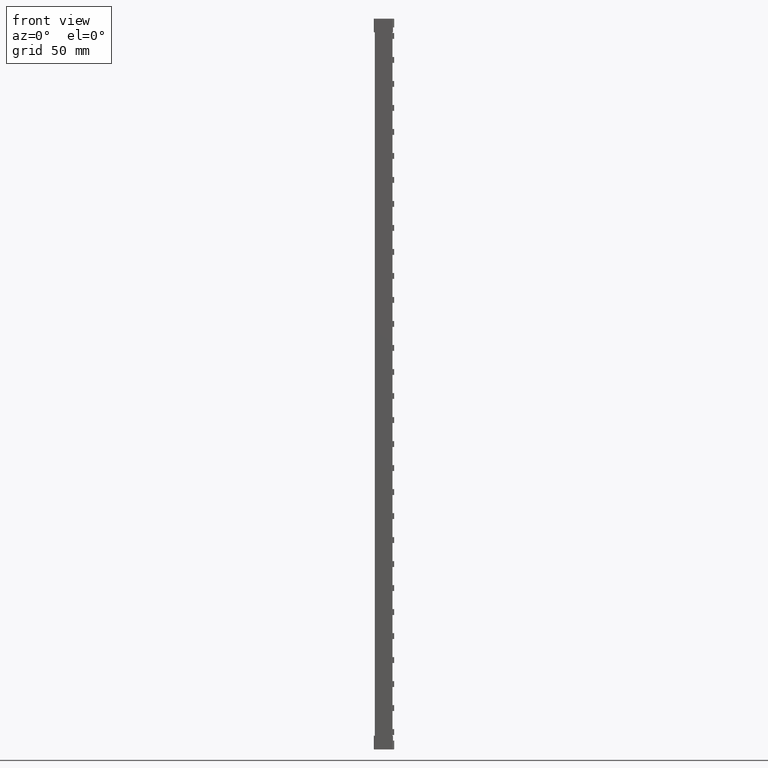
[diagram: clean part render]
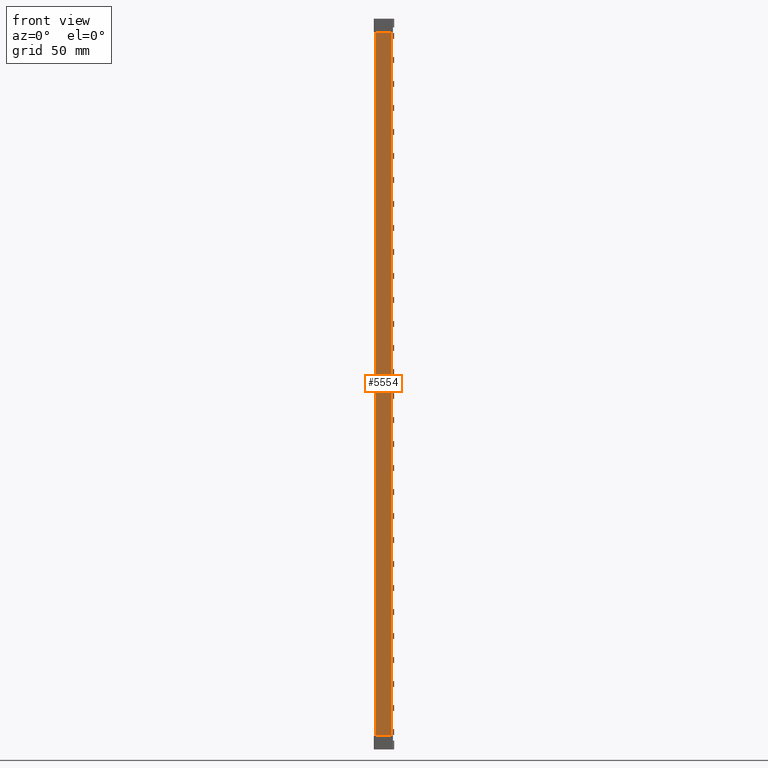
[diagram: same view with one face highlighted and labeled with its STEP entity id]
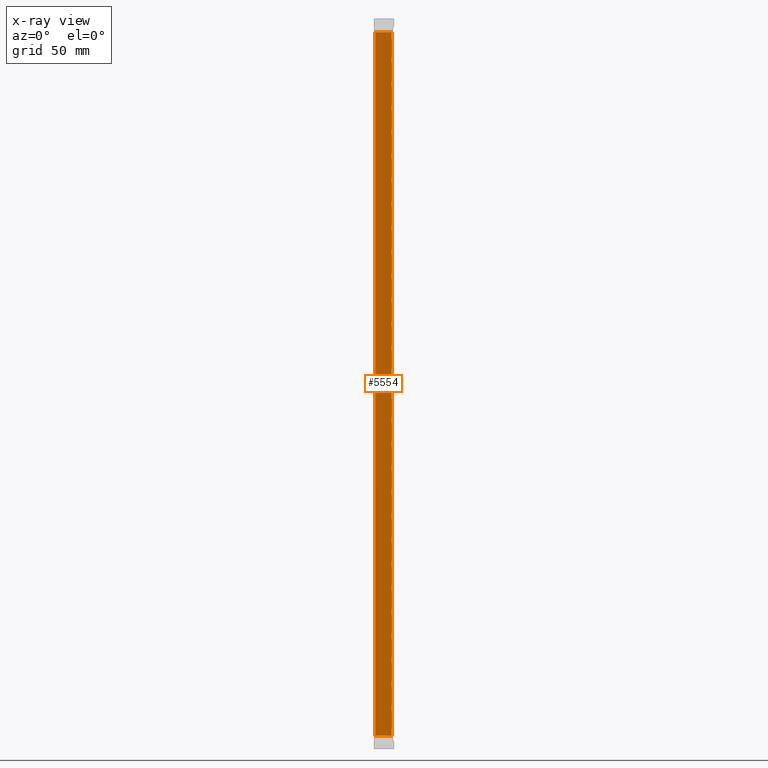
[diagram: x-ray of the same camera — body ghosted, the highlighted face saturated]
A machine part, front view. The second image highlights one B-rep face of the part: STEP entity #5554.
The next image is the same camera in x-ray: the body ghosted, the highlighted face saturated — about 0% of this face is hidden behind the body in this view.
In plain terms, the highlighted planar face has unit normal (-0, 1, 0).
Its self-contained STEP definition (entity closure, byte-faithful):
#605 = ORIENTED_EDGE ( 'NONE', *, *, #16977, .T. ) ;
#612 = ORIENTED_EDGE ( 'NONE', *, *, #22500, .F. ) ;
#639 = ORIENTED_EDGE ( 'NONE', *, *, #16926, .F. ) ;
#697 = ORIENTED_EDGE ( 'NONE', *, *, #16941, .T. ) ;
#1421 = VECTOR ( 'NONE', #19249, 1000.000000000000000 ) ;
#1452 = VECTOR ( 'NONE', #19268, 1000.000000000000100 ) ;
#1468 = VECTOR ( 'NONE', #19393, 1000.000000000000000 ) ;
#4062 = EDGE_LOOP ( 'NONE', ( #612, #605, #697, #639 ) ) ;
#5554 = ADVANCED_FACE ( 'NONE', ( #40787 ), #40804, .F. ) ;
#16926 = EDGE_CURVE ( 'NONE', #34152, #23257, #19223, .T. ) ;
#16941 = EDGE_CURVE ( 'NONE', #23083, #23257, #19299, .T. ) ;
#16977 = EDGE_CURVE ( 'NONE', #28327, #23083, #19386, .T. ) ;
#19223 = LINE ( 'NONE', #19227, #1421 ) ;
#19227 = CARTESIAN_POINT ( 'NONE',  ( 11.80192812978781800, 1.341396419667680700E-007, 219.0000000000000000 ) ) ;
#19249 = DIRECTION ( 'NONE',  ( -0.0000000000000000000, -0.0000000000000000000, -1.000000000000000000 ) ) ;
#19268 = DIRECTION ( 'NONE',  ( 0.9999999999999998900, 1.136590449795155200E-008, 3.864550688587075800E-026 ) ) ;
#19292 = CARTESIAN_POINT ( 'NONE',  ( -0.4999997060800690000, -5.682891657254884900E-009, -305.9000000000000300 ) ) ;
#19299 = LINE ( 'NONE', #19292, #1452 ) ;
#19386 = LINE ( 'NONE', #19392, #1468 ) ;
#19392 = CARTESIAN_POINT ( 'NONE',  ( -9.184850993604136500E-017, 5.551115123125782700E-014, 219.0000000000000000 ) ) ;
#19393 = DIRECTION ( 'NONE',  ( -0.0000000000000000000, -0.0000000000000000000, -1.000000000000000000 ) ) ;
#22500 = EDGE_CURVE ( 'NONE', #28327, #34152, #40713, .T. ) ;
#23083 = VERTEX_POINT ( 'NONE', #44083 ) ;
#23257 = VERTEX_POINT ( 'NONE', #42866 ) ;
#28327 = VERTEX_POINT ( 'NONE', #43292 ) ;
#31701 = AXIS2_PLACEMENT_3D ( 'NONE', #40783, #40782, #40839 ) ;
#34152 = VERTEX_POINT ( 'NONE', #43460 ) ;
#38941 = VECTOR ( 'NONE', #40715, 1000.000000000000100 ) ;
#40713 = LINE ( 'NONE', #40718, #38941 ) ;
#40715 = DIRECTION ( 'NONE',  ( 0.9999999999999998900, 1.136590436583420100E-008, -3.864550688586627000E-026 ) ) ;
#40718 = CARTESIAN_POINT ( 'NONE',  ( -0.4999997060800690000, -5.682893331100043300E-009, 209.9000000000000100 ) ) ;
#40782 = DIRECTION ( 'NONE',  ( -1.136590436583420300E-008, 1.000000000000000000, 0.0000000000000000000 ) ) ;
#40783 = CARTESIAN_POINT ( 'NONE',  ( 0.0000000000000000000, 5.551115123125782700E-014, 219.0000000000000000 ) ) ;
#40787 = FACE_OUTER_BOUND ( 'NONE', #4062, .T. ) ;
#40804 = PLANE ( 'NONE',  #31701 ) ;
#40839 = DIRECTION ( 'NONE',  ( -0.9999999999999998900, -1.136590436583420100E-008, 0.0000000000000000000 ) ) ;
#42866 = CARTESIAN_POINT ( 'NONE',  ( 11.80192812978781800, 1.341396452464796400E-007, -305.9000000000000300 ) ) ;
#43292 = CARTESIAN_POINT ( 'NONE',  ( 0.0000000000000000000, 5.725105502598715000E-014, 209.9000000000000100 ) ) ;
#43460 = CARTESIAN_POINT ( 'NONE',  ( 11.80192812978781800, 1.341396452464796400E-007, 209.9000000000000100 ) ) ;
#44083 = CARTESIAN_POINT ( 'NONE',  ( 0.0000000000000000000, 5.725105502598715000E-014, -305.9000000000000300 ) ) ;